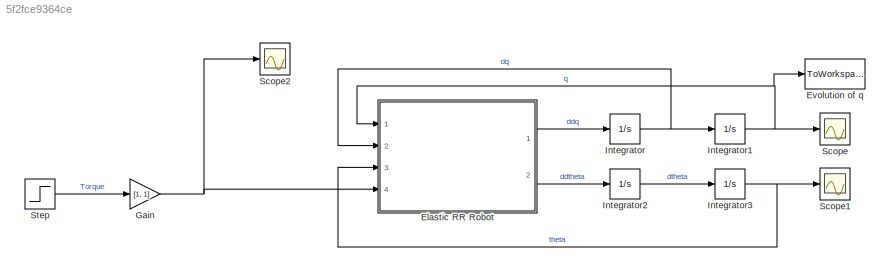
MODEL slx_5f2fce9364ce
KIND model
CONFIG AbsTol = auto
CONFIG EnableMultiTasking = off
CONFIG FixedStep = auto
CONFIG MaxStep = 1e-2
CONFIG MinStep = auto
CONFIG RelTol = 1e-3
CONFIG SampleTimeConstraint = Unconstrained
CONFIG SolverName = VariableStepAuto
CONFIG StartTime = 0.0
CONFIG StopTime = 10.0
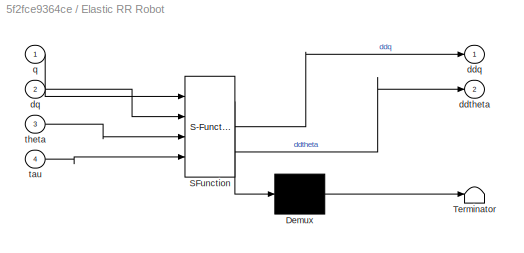
BLOCK [SubSystem] Elastic RR Robot
  ErrorFcn = Stateflow.Translate.translate
  PermitHierarchicalResolution = ExplicitOnly
  Ports = [4, 2]
  RequestExecContextInheritance = off
  SFBlockType = MATLAB Function
  TreatAsAtomicUnit = on
BLOCK [Demux] Elastic RR Robot/ Demux 
  Outputs = 1
  Ports = [1, 1]
BLOCK [S-Function] Elastic RR Robot/ SFunction 
  EnableBusSupport = on
  FunctionName = sf_sfun
  Parameters = B,K,S,a1,a2,m1,m2
  PortCounts = [4 3]
  Ports = [4, 3]
  SFcnIsStateOwnerBlock = off
  SFunctionDeploymentMode = off
  Tag = Stateflow S-Function 2
BLOCK [Terminator] Elastic RR Robot/ Terminator 
BLOCK [Outport] Elastic RR Robot/ddq
BLOCK [Outport] Elastic RR Robot/ddtheta
  Port = 2
BLOCK [Inport] Elastic RR Robot/dq
  Port = 2
BLOCK [Inport] Elastic RR Robot/q
BLOCK [Inport] Elastic RR Robot/tau
  Port = 4
BLOCK [Inport] Elastic RR Robot/theta
  Port = 3
BLOCK [ToWorkspace] Evolution of q
  FixptAsFi = on
  MaxDataPoints = inf
  Ports = [1]
  SampleTime = -1
  SaveFormat = Timeseries
  VariableName = q_out
BLOCK [Gain] Gain
  Gain = [1, 1]
BLOCK [Integrator] Integrator
  InitialCondition = dq0
  Ports = [1, 1]
BLOCK [Integrator] Integrator1
  InitialCondition = q0
  Ports = [1, 1]
BLOCK [Integrator] Integrator2
  InitialCondition = dtheta0
  Ports = [1, 1]
BLOCK [Integrator] Integrator3
  InitialCondition = theta0
  Ports = [1, 1]
BLOCK [Scope] Scope
  Floating = off
  NumInputPorts = 1
  Ports = [1]
  ScopeSpecificationString = Simulink.scopes.TimeScopeBlockCfg('CurrentConfiguration', extmgr.ConfigurationSet(extmgr.Configuration('Core','General UI',true),extmgr.Configuration('Core','Source UI',true),extmgr.Configuration('Sources','WiredSimulink',true),extmgr.Configuration('Visuals','Time Domain',true,'SerializedDisplays',{struct('MinYLimReal','-2.10057','MaxYLimReal','1.31945','YLabelReal','','MinYLimMag','0.00000','MaxY...<+1329ch>
BLOCK [Scope] Scope1
  Floating = off
  NumInputPorts = 1
  Ports = [1]
  ScopeSpecificationString = Simulink.scopes.TimeScopeBlockCfg('CurrentConfiguration', extmgr.ConfigurationSet(extmgr.Configuration('Core','General UI',true),extmgr.Configuration('Core','Source UI',true),extmgr.Configuration('Sources','WiredSimulink',true,'DataLoggingVariableName','ScopeData1'),extmgr.Configuration('Visuals','Time Domain',true,'SerializedDisplays',{struct('MinYLimReal','-2.38074','MaxYLimReal','3.36385','YLab...<+1376ch>
BLOCK [Scope] Scope2
  Floating = off
  NumInputPorts = 1
  Ports = [1]
  ScopeSpecificationString = Simulink.scopes.TimeScopeBlockCfg('CurrentConfiguration', extmgr.ConfigurationSet(extmgr.Configuration('Core','General UI',true),extmgr.Configuration('Core','Source UI',true),extmgr.Configuration('Sources','WiredSimulink',true,'DataLoggingVariableName','ScopeData4'),extmgr.Configuration('Visuals','Time Domain',true,'SerializedDisplays',{struct('MinYLimReal','-0.125','MaxYLimReal','1.125','YLabelRe...<+1387ch>
BLOCK [Step] Step
  SampleTime = 0
LINE Elastic RR Robot:1 -> Integrator:1
LINE Elastic RR Robot:2 -> Integrator2:1
NET Gain:1 -> Elastic RR Robot:4, Scope2:1
NET Integrator1:1 -> Elastic RR Robot:1, Evolution of q:1, Scope:1
LINE Integrator2:1 -> Integrator3:1
NET Integrator3:1 -> Elastic RR Robot:3, Scope1:1
NET Integrator:1 -> Elastic RR Robot:2, Integrator1:1
LINE Step:1 -> Gain:1
note: NET lines group one-source signal fan-out (src -> all destinations, sorted); 1:1 wires keep LINE
CHART Elastic RR Robot states=1 transitions=1
  STATE_LABEL 'eML_blk_kernel()'
  STATE_LABEL "SCRIPT:\nfunction [ddq, ddtheta] = fcn(q, dq, theta, tau, K, B, m1, m2, a1, a2, S)\n\n% Compute dynamic matrices\n[M, C, G] = dynamics(q, dq, m1, m2, a1, a2);\n\n% State evolutions\nddq = M\\(S.'*K*(theta - q) - C*dq - G);\nddtheta = B\\(tau - K*(theta - q));\n"
CHART  states=0 transitions=0
